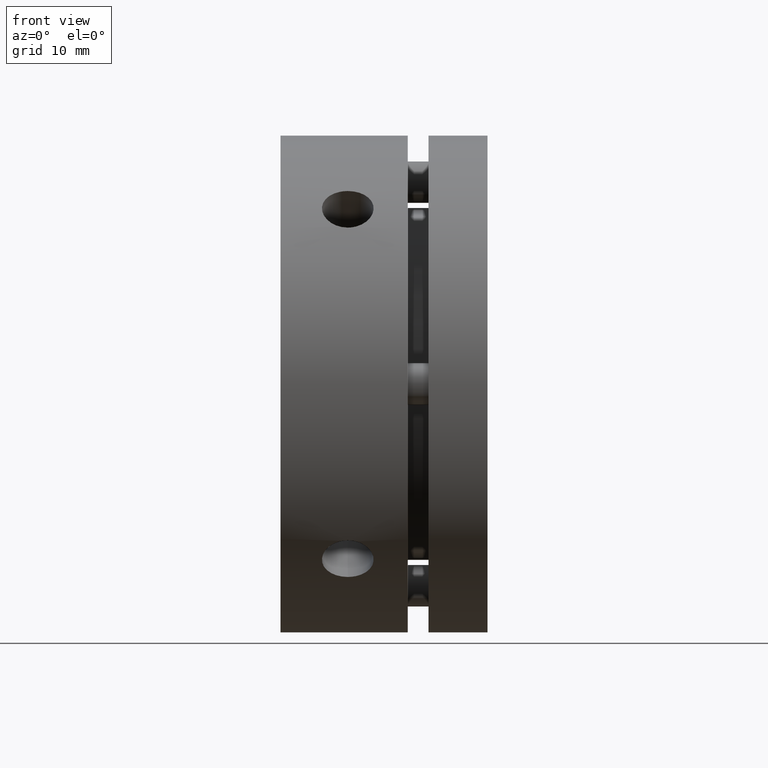
[diagram: clean part render]
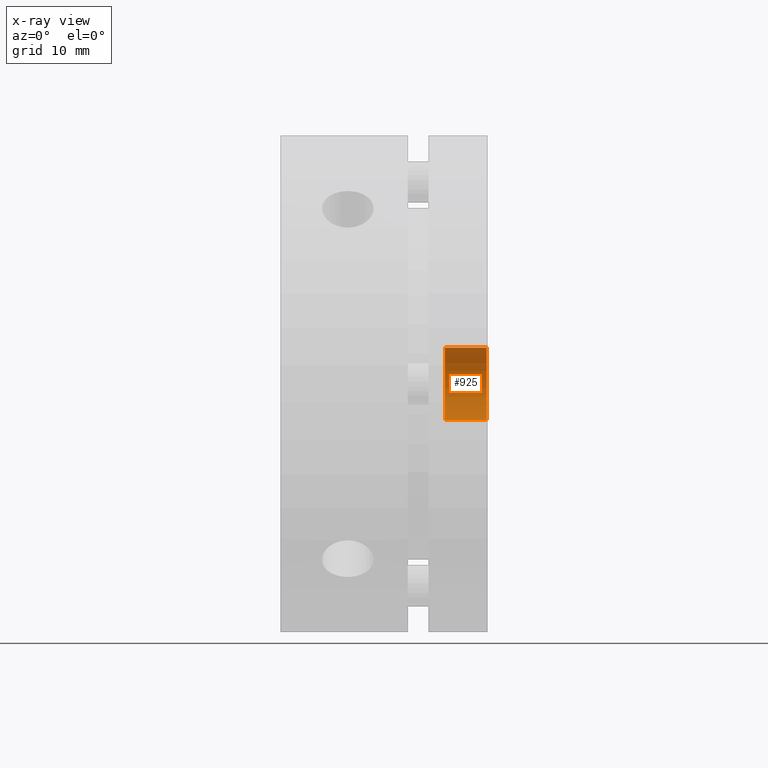
[diagram: x-ray — body ghosted, one internal face saturated and labeled with its STEP entity id]
A machine part, front view, then the same camera in x-ray: the body is ghosted and one INTERNAL B-rep face — a face not visible from any outside direction — is saturated and labeled: STEP entity #925.
In plain terms, the highlighted cylindrical surface (edge-blend (fillet) strip) has radius 3.5 mm, axis along (-1, 0, -0).
Its self-contained STEP definition (entity closure, byte-faithful):
#239 = AXIS2_PLACEMENT_3D ( 'NONE', #1612, #1611, #1605 ) ;
#283 = VERTEX_POINT ( 'NONE', #1116 ) ;
#302 = VERTEX_POINT ( 'NONE', #1179 ) ;
#347 = VERTEX_POINT ( 'NONE', #1223 ) ;
#365 = VERTEX_POINT ( 'NONE', #1241 ) ;
#778 = FACE_OUTER_BOUND ( 'NONE', #1090, .T. ) ;
#783 = CYLINDRICAL_SURFACE ( 'NONE', #239, 3.500000000000000000 ) ;
#925 = ADVANCED_FACE ( 'NONE', ( #778 ), #783, .T. ) ;
#945 = ORIENTED_EDGE ( 'NONE', *, *, #3331, .F. ) ;
#969 = ORIENTED_EDGE ( 'NONE', *, *, #3326, .T. ) ;
#1034 = ORIENTED_EDGE ( 'NONE', *, *, #2931, .T. ) ;
#1044 = ORIENTED_EDGE ( 'NONE', *, *, #3330, .F. ) ;
#1090 = EDGE_LOOP ( 'NONE', ( #945, #1044, #1034, #969 ) ) ;
#1116 = CARTESIAN_POINT ( 'NONE',  ( 4.286263797015736600E-016, 0.0000000000000000000, 3.500000000000000000 ) ) ;
#1179 = CARTESIAN_POINT ( 'NONE',  ( 4.286263797015736600E-016, 4.000000000000000000, 3.500000000000000000 ) ) ;
#1223 = CARTESIAN_POINT ( 'NONE',  ( 0.0000000000000000000, 4.000000000000000000, -3.500000000000000000 ) ) ;
#1241 = CARTESIAN_POINT ( 'NONE',  ( 0.0000000000000000000, 0.0000000000000000000, -3.500000000000000000 ) ) ;
#1605 = DIRECTION ( 'NONE',  ( 0.0000000000000000000, 0.0000000000000000000, -1.000000000000000000 ) ) ;
#1611 = DIRECTION ( 'NONE',  ( -0.0000000000000000000, -1.000000000000000000, -0.0000000000000000000 ) ) ;
#1612 = CARTESIAN_POINT ( 'NONE',  ( 0.0000000000000000000, 4.000000000000000000, 0.0000000000000000000 ) ) ;
#1841 = DIRECTION ( 'NONE',  ( -0.0000000000000000000, -1.000000000000000000, -0.0000000000000000000 ) ) ;
#1883 = CARTESIAN_POINT ( 'NONE',  ( 0.0000000000000000000, 4.000000000000000000, -3.500000000000000000 ) ) ;
#2215 = CARTESIAN_POINT ( 'NONE',  ( 0.0000000000000000000, 0.0000000000000000000, 0.0000000000000000000 ) ) ;
#2216 = DIRECTION ( 'NONE',  ( 0.0000000000000000000, 1.000000000000000000, 0.0000000000000000000 ) ) ;
#2217 = DIRECTION ( 'NONE',  ( 0.0000000000000000000, 0.0000000000000000000, 1.000000000000000000 ) ) ;
#2218 = CARTESIAN_POINT ( 'NONE',  ( 4.286263797015736600E-016, 4.000000000000000000, 3.500000000000000000 ) ) ;
#2222 = DIRECTION ( 'NONE',  ( -0.0000000000000000000, -1.000000000000000000, -0.0000000000000000000 ) ) ;
#2228 = CARTESIAN_POINT ( 'NONE',  ( 0.0000000000000000000, 4.000000000000000000, 0.0000000000000000000 ) ) ;
#2229 = DIRECTION ( 'NONE',  ( 0.0000000000000000000, 1.000000000000000000, 0.0000000000000000000 ) ) ;
#2230 = DIRECTION ( 'NONE',  ( 0.0000000000000000000, 0.0000000000000000000, 1.000000000000000000 ) ) ;
#2625 = LINE ( 'NONE', #1883, #2627 ) ;
#2627 = VECTOR ( 'NONE', #1841, 1000.000000000000000 ) ;
#2707 = CIRCLE ( 'NONE', #3401, 3.500000000000000000 ) ;
#2715 = CIRCLE ( 'NONE', #3404, 3.500000000000000000 ) ;
#2717 = LINE ( 'NONE', #2218, #2719 ) ;
#2719 = VECTOR ( 'NONE', #2222, 1000.000000000000000 ) ;
#2931 = EDGE_CURVE ( 'NONE', #347, #365, #2625, .T. ) ;
#3326 = EDGE_CURVE ( 'NONE', #365, #283, #2707, .T. ) ;
#3330 = EDGE_CURVE ( 'NONE', #347, #302, #2715, .T. ) ;
#3331 = EDGE_CURVE ( 'NONE', #302, #283, #2717, .T. ) ;
#3401 = AXIS2_PLACEMENT_3D ( 'NONE', #2215, #2216, #2217 ) ;
#3404 = AXIS2_PLACEMENT_3D ( 'NONE', #2228, #2229, #2230 ) ;